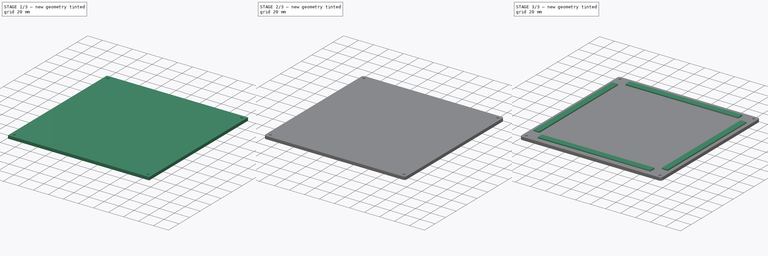
[diagram: build sequence overview — one tinted view per stage of 3, left to right]
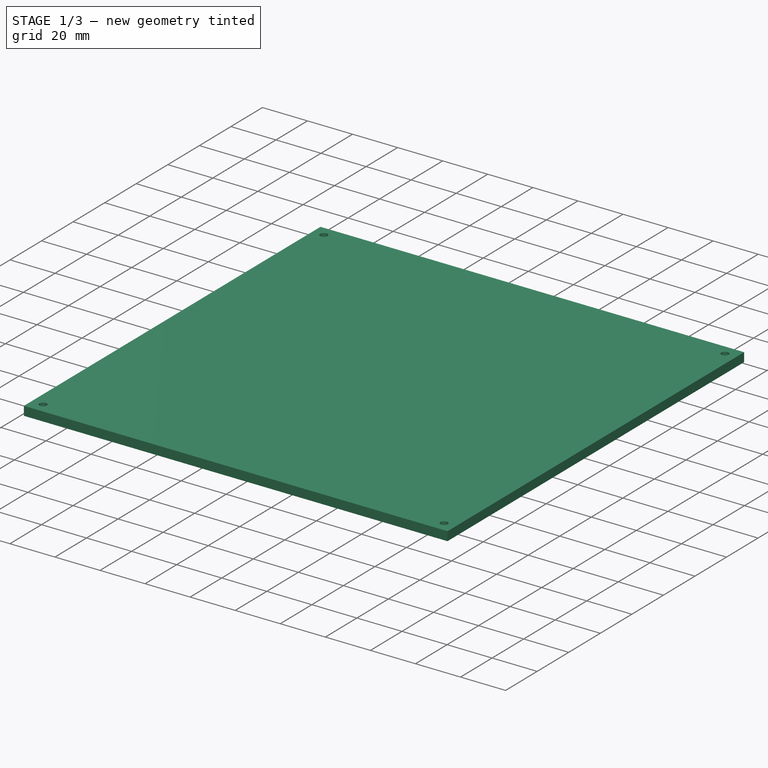
[diagram: stage 1 of 3 — iso view after this stage's code; geometry added in this stage tinted green]
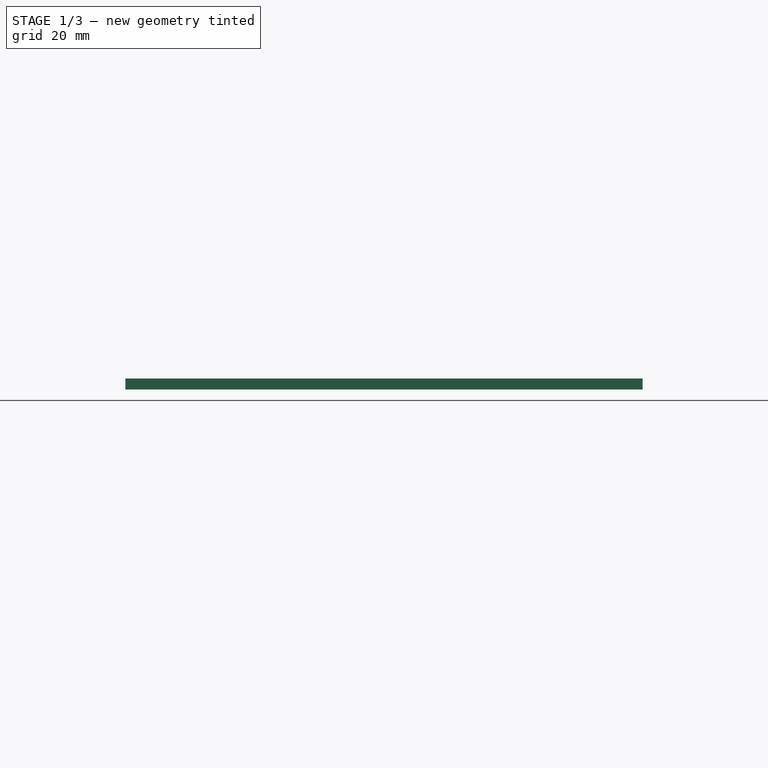
[diagram: stage 1 of 3 — front view after this stage's code; geometry added in this stage tinted green]
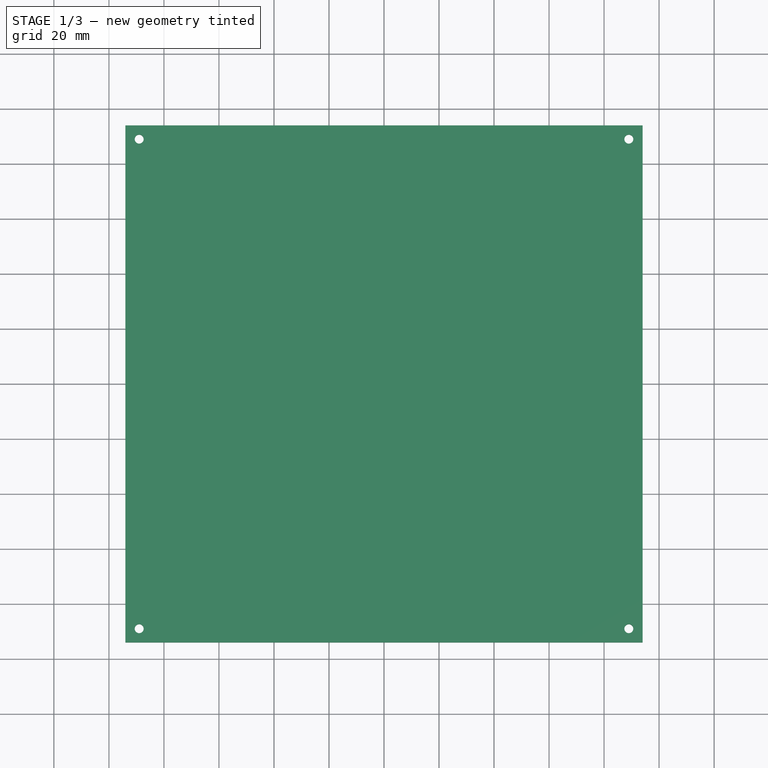
[diagram: stage 1 of 3 — top view after this stage's code; geometry added in this stage tinted green]
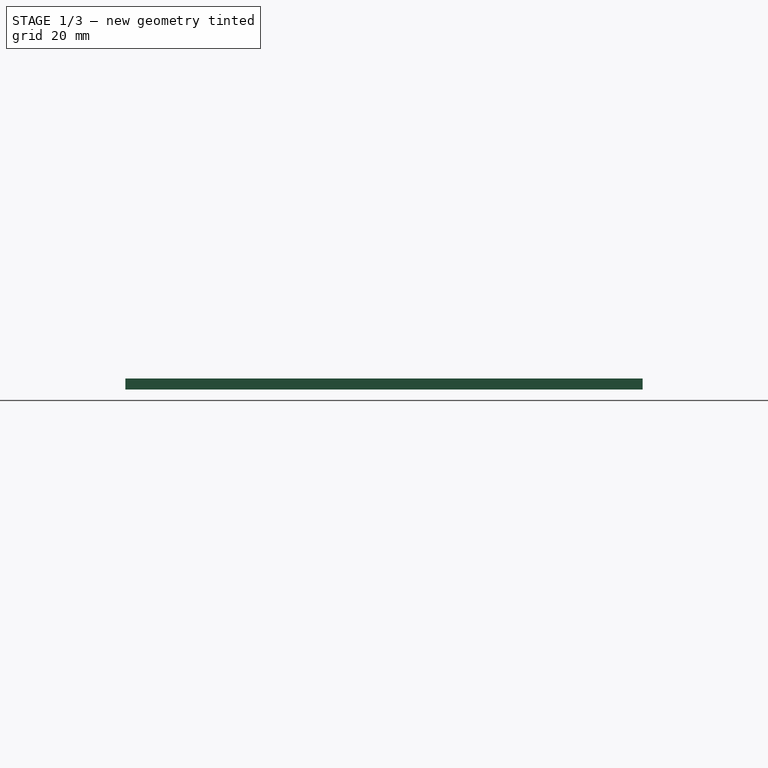
[diagram: stage 1 of 3 — right view after this stage's code; geometry added in this stage tinted green]
FCSTD DOCUMENT  (FreeCAD 1.0R38641 +468 (Git))
Label: pumps-box-lid-v0.4-no-connectors
License: All rights reserved
LicenseURL: https://en.wikipedia.org/wiki/All_rights_reserved
objects: Sketcher::SketchObject×3, PartDesign::Pad×2, PartDesign::Fillet×2, PartDesign::Pocket×1, PartDesign::Body×1
note: 22 computed .brp shape members not serialized (recipe doc carries the construction recipe); baked Part::Feature solids carry a one-line shape summary decoded from their .brp

FEATURE [Sketcher::SketchObject] Sketch
  ArcFitTolerance = 0
  AttachmentSupport = -> [XY_Plane]
  FullyConstrained = true
  MakeInternals = false
  MapMode = 5
  sketch-geometry (4):
    g0: LineSegment StartX=-94 StartY=94 StartZ=0 EndX=94 EndY=94 EndZ=0
    g1: LineSegment StartX=94 StartY=94 StartZ=0 EndX=94 EndY=-94 EndZ=0
    g2: LineSegment StartX=94 StartY=-94 StartZ=0 EndX=-94 EndY=-94 EndZ=0
    g3: LineSegment StartX=-94 StartY=-94 StartZ=0 EndX=-94 EndY=94 EndZ=0
  constraints (11):
    c: Coincident(g0,g1)
    c: Coincident(g1,g2)
    c: Coincident(g2,g3)
    c: Coincident(g3,g0)
    c: Horizontal(g0)
    c: Horizontal(g2)
    c: Vertical(g1)
    c: Vertical(g3)
    c: Symmetric(g0,g1,g-1)
    c: DistanceX(g0,g-1) = 94
    c: DistanceY(g-1,g0) = 94
FEATURE [PartDesign::Pad] Pad
  Direction = (0,0,1)
  Length = 4
  Length2 = 10
  Profile = -> Sketch
  ReferenceAxis = -> Sketch [N_Axis]
  Suppressed = false
  Type = 0
FEATURE [Sketcher::SketchObject] Sketch001
  ArcFitTolerance = 0
  AttachmentSupport = -> [Pad]
  FullyConstrained = true
  MakeInternals = false
  MapMode = 5
  Placement = pos=(0,0,4) rot=(0,0,1;0rad)
  sketch-geometry (4):
    g0: Circle CenterX=-89 CenterY=89 CenterZ=0 NormalX=0 NormalY=0 NormalZ=1 AngleXU=0 Radius=1.625
    g1: Circle CenterX=89 CenterY=89 CenterZ=0 NormalX=0 NormalY=0 NormalZ=1 AngleXU=0 Radius=1.625
    g2: Circle CenterX=89 CenterY=-89 CenterZ=0 NormalX=0 NormalY=0 NormalZ=1 AngleXU=0 Radius=1.625
    g3: Circle CenterX=-89 CenterY=-89 CenterZ=0 NormalX=0 NormalY=0 NormalZ=1 AngleXU=0 Radius=1.625
  constraints (10):
    c: Equal(g0,g1)
    c: Equal(g0,g2)
    c: Equal(g0,g3)
    c: Diameter(g0) = 3.25
    c: Symmetric(g0,g2,g-1)
    c: Symmetric(g3,g1,g-1)
    c: DistanceY(g-1,g0) = 89
    c: DistanceX(g0,g-1) = 89
    c: DistanceX(g3,g0) = 0
    c: DistanceY(g3,g2) = 0
FEATURE [PartDesign::Pocket] Pocket  label="Corner Screw Holes"
  BaseFeature = -> Pad
  Direction = (0,0,-1)
  Length = 5
  Length2 = 5
  Profile = -> Sketch001
  ReferenceAxis = -> Sketch001 [N_Axis]
  Suppressed = false
  Type = 1
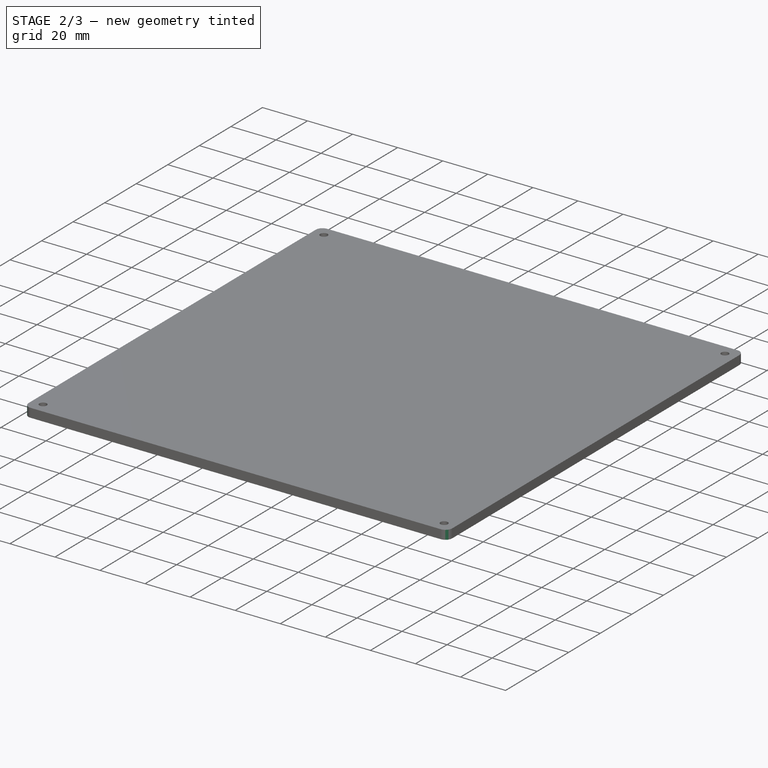
[diagram: stage 2 of 3 — iso view after this stage's code; geometry added in this stage tinted green]
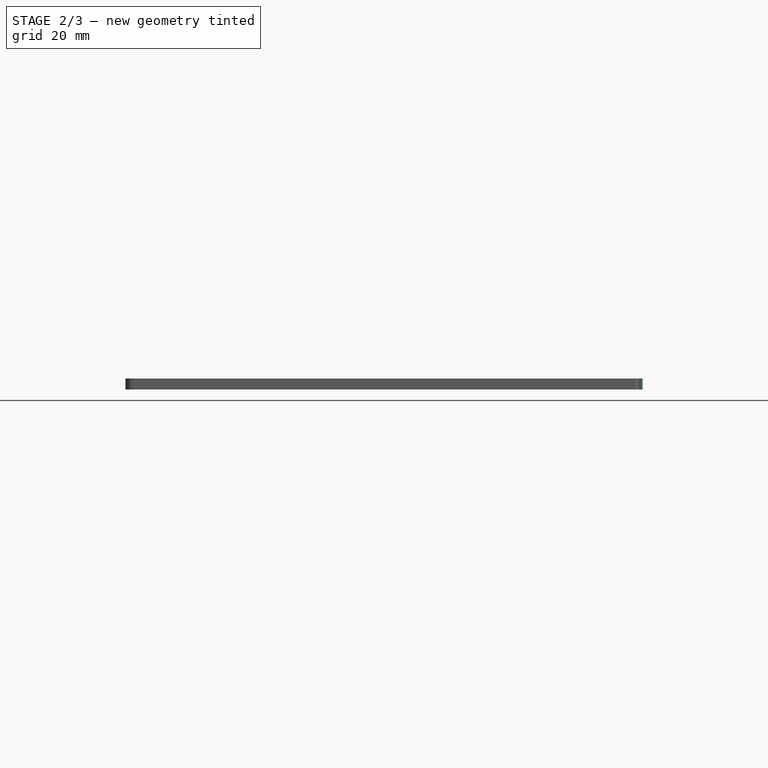
[diagram: stage 2 of 3 — front view after this stage's code; geometry added in this stage tinted green]
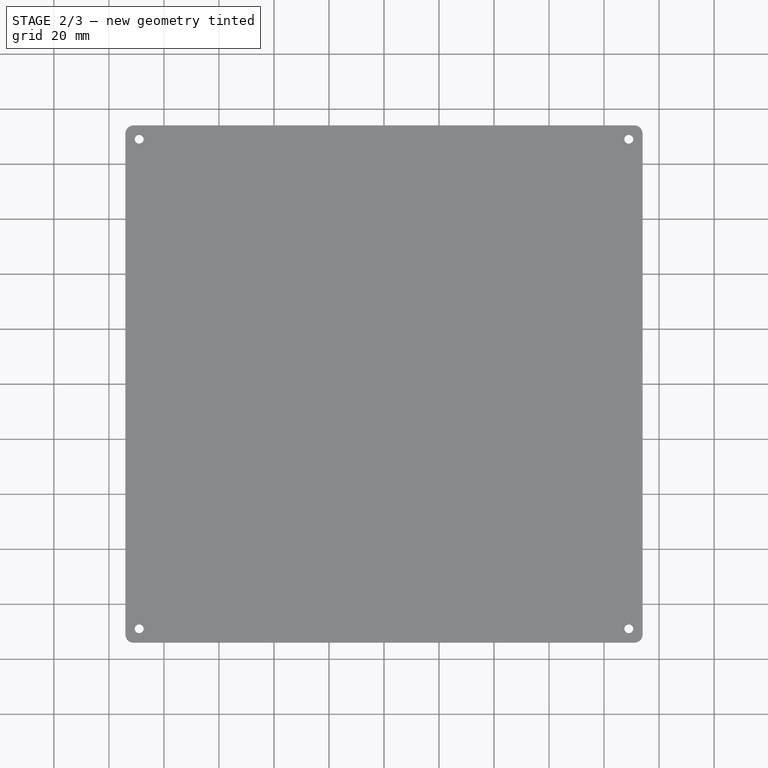
[diagram: stage 2 of 3 — top view after this stage's code; geometry added in this stage tinted green]
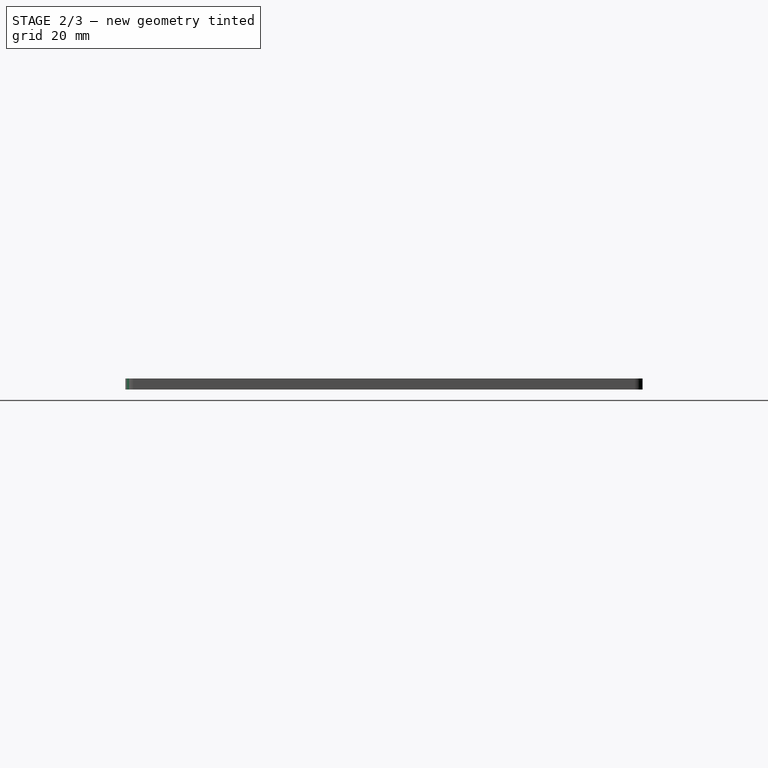
[diagram: stage 2 of 3 — right view after this stage's code; geometry added in this stage tinted green]
FEATURE [PartDesign::Fillet] Fillet
  Base = -> Pocket [Edge1,Edge2,Edge5,Edge8]
  BaseFeature = -> Pocket
  Radius = 3
  SupportTransform = false
  Suppressed = false
  UseAllEdges = false
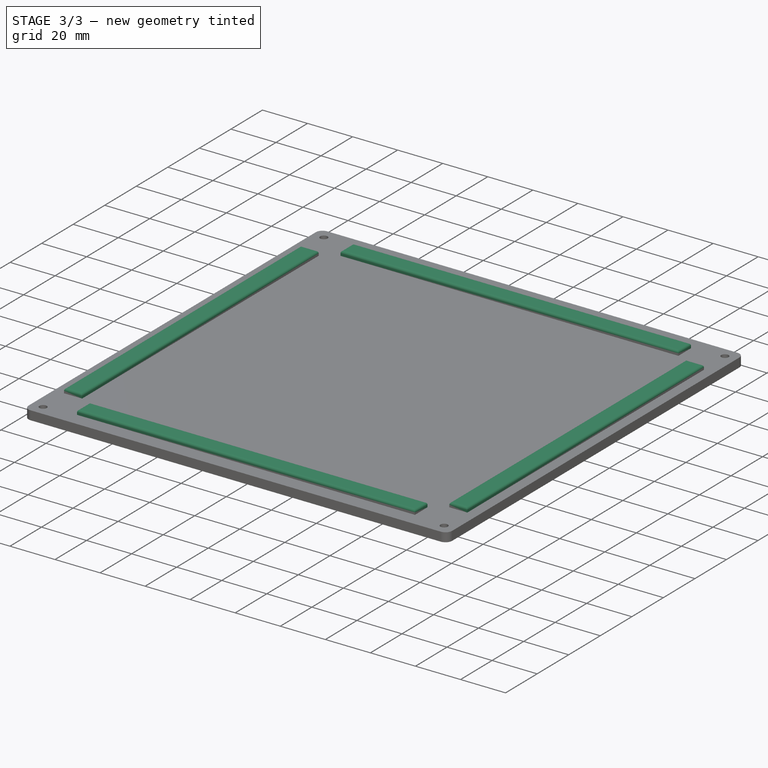
[diagram: stage 3 of 3 — iso view after this stage's code; geometry added in this stage tinted green]
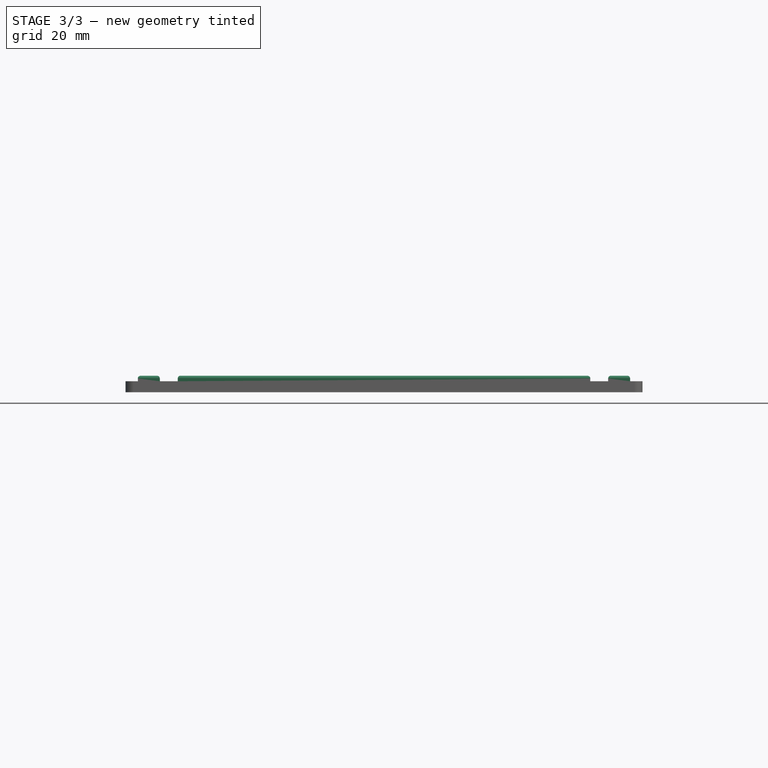
[diagram: stage 3 of 3 — front view after this stage's code; geometry added in this stage tinted green]
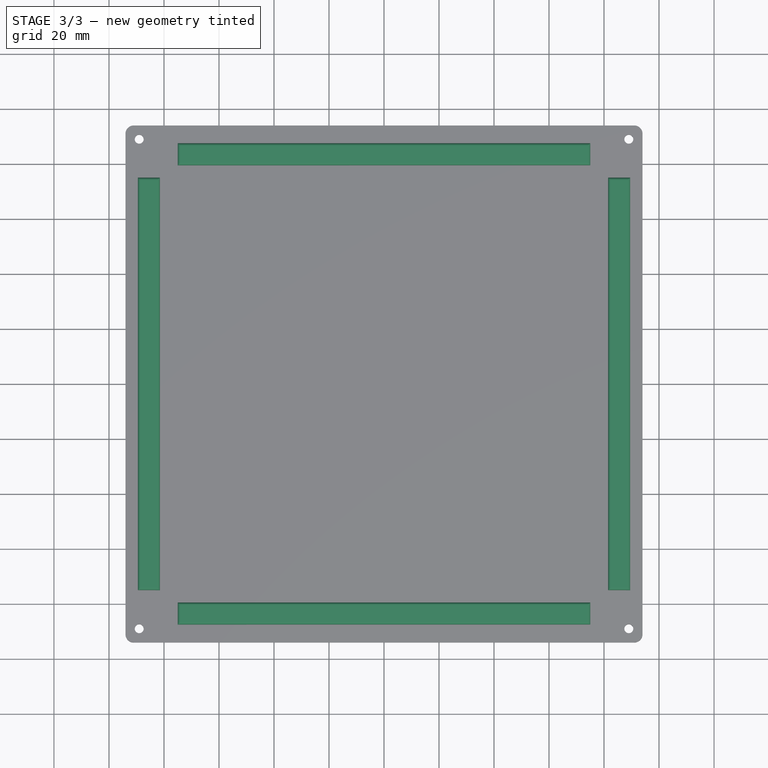
[diagram: stage 3 of 3 — top view after this stage's code; geometry added in this stage tinted green]
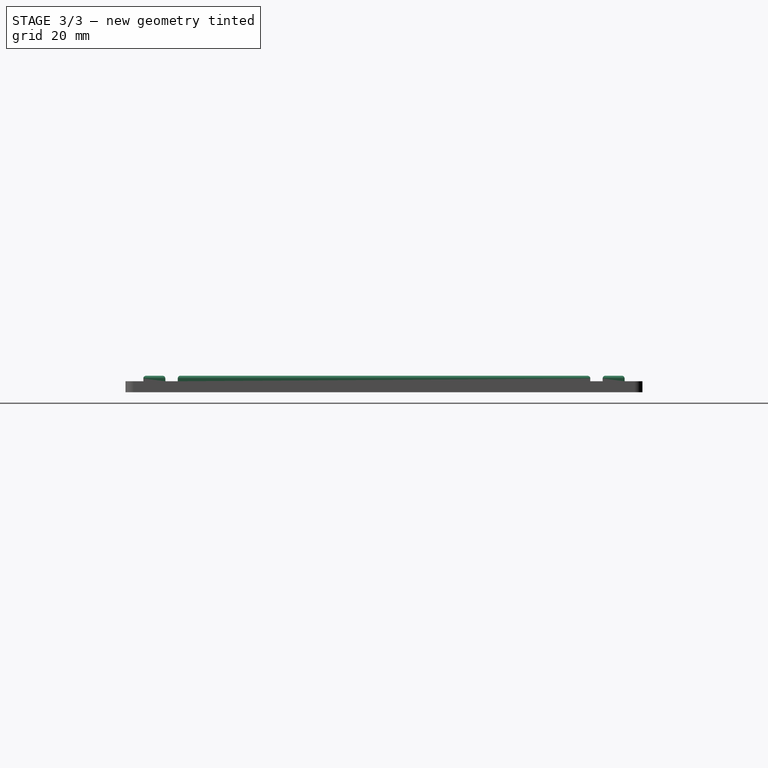
[diagram: stage 3 of 3 — right view after this stage's code; geometry added in this stage tinted green]
FEATURE [Sketcher::SketchObject] Sketch003
  ArcFitTolerance = 0
  AttachmentSupport = -> [Fillet]
  FullyConstrained = true
  MakeInternals = false
  MapMode = 5
  Placement = pos=(0,0,4) rot=(0,0,1;0rad)
  sketch-geometry (16):
    g0: LineSegment StartX=-75 StartY=-79.5 StartZ=0 EndX=75 EndY=-79.5 EndZ=0
    g1: LineSegment StartX=75 StartY=-79.5 StartZ=0 EndX=75 EndY=-87.5 EndZ=0
    g2: LineSegment StartX=75 StartY=-87.5 StartZ=0 EndX=-75 EndY=-87.5 EndZ=0
    g3: LineSegment StartX=-75 StartY=-87.5 StartZ=0 EndX=-75 EndY=-79.5 EndZ=0
    g4: LineSegment StartX=-75 StartY=87.5 StartZ=0 EndX=75 EndY=87.5 EndZ=0
    g5: LineSegment StartX=75 StartY=87.5 StartZ=0 EndX=75 EndY=79.5 EndZ=0
    g6: LineSegment StartX=75 StartY=79.5 StartZ=0 EndX=-75 EndY=79.5 EndZ=0
    g7: LineSegment StartX=-75 StartY=79.5 StartZ=0 EndX=-75 EndY=87.5 EndZ=0
    g8: LineSegment StartX=-89.5 StartY=75 StartZ=0 EndX=-81.5 EndY=75 EndZ=0
    g9: LineSegment StartX=-81.5 StartY=75 StartZ=0 EndX=-81.5 EndY=-75 EndZ=0
    g10: LineSegment StartX=-81.5 StartY=-75 StartZ=0 EndX=-89.5 EndY=-75 EndZ=0
    g11: LineSegment StartX=-89.5 StartY=-75 StartZ=0 EndX=-89.5 EndY=75 EndZ=0
    g12: LineSegment StartX=81.5 StartY=75 StartZ=0 EndX=89.5 EndY=75 EndZ=0
    g13: LineSegment StartX=89.5 StartY=75 StartZ=0 EndX=89.5 EndY=-75 EndZ=0
    g14: LineSegment StartX=89.5 StartY=-75 StartZ=0 EndX=81.5 EndY=-75 EndZ=0
    g15: LineSegment StartX=81.5 StartY=-75 StartZ=0 EndX=81.5 EndY=75 EndZ=0
  constraints (44):
    c: Coincident(g0,g1)
    c: Coincident(g1,g2)
    c: Coincident(g2,g3)
    c: Coincident(g3,g0)
    c: Horizontal(g2)
    c: Vertical(g1)
    c: Vertical(g3)
    c: Distance(g0) = 150
    c: Distance(g3) = 8
    c: DistanceY(g0,g-1) = 79.5
    c: Symmetric(g0,g0,g-2)
    c: Coincident(g4,g5)
    c: Coincident(g5,g6)
    c: Coincident(g6,g7)
    c: Coincident(g7,g4)
    c: Horizontal(g4)
    c: Horizontal(g6)
    c: Vertical(g5)
    c: Vertical(g7)
    c: Equal(g0,g6)
    c: Equal(g1,g5)
    c: Symmetric(g0,g6,g-1)
    c: Coincident(g8,g9)
    c: Coincident(g9,g10)
    c: Coincident(g10,g11)
    c: Coincident(g11,g8)
    c: Horizontal(g8)
    c: Horizontal(g10)
    c: Vertical(g9)
    c: Equal(g9,g0)
    c: Equal(g10,g3)
    c: DistanceX(g8,g-1) = 81.5
    c: Symmetric(g8,g10,g-1)
    c: Coincident(g12,g13)
    c: Coincident(g13,g14)
    c: Coincident(g14,g15)
    c: Coincident(g15,g12)
    c: Horizontal(g12)
    c: Horizontal(g14)
    c: Vertical(g13)
    c: Vertical(g15)
    c: Equal(g12,g8)
    c: Equal(g15,g11)
    c: Symmetric(g12,g8,g-2)
FEATURE [PartDesign::Pad] Pad001
  BaseFeature = -> Fillet
  Direction = (0,0,1)
  Length = 2
  Length2 = 10
  Profile = -> Sketch003
  ReferenceAxis = -> Sketch003 [N_Axis]
  Suppressed = false
  Type = 0
FEATURE [PartDesign::Fillet] Fillet001
  Base = -> Pad001 [Face31,Face32,Face33,Face34]
  BaseFeature = -> Pad001
  Radius = 1
  SupportTransform = false
  Suppressed = false
  UseAllEdges = false
FEATURE [PartDesign::Body] Body
  AllowCompound = false
  Group = -> [Sketch,Pad,Sketch001,Pocket,Fillet,Sketch003,Pad001,Fillet001]
  Origin = -> Origin
  Tip = -> Fillet001
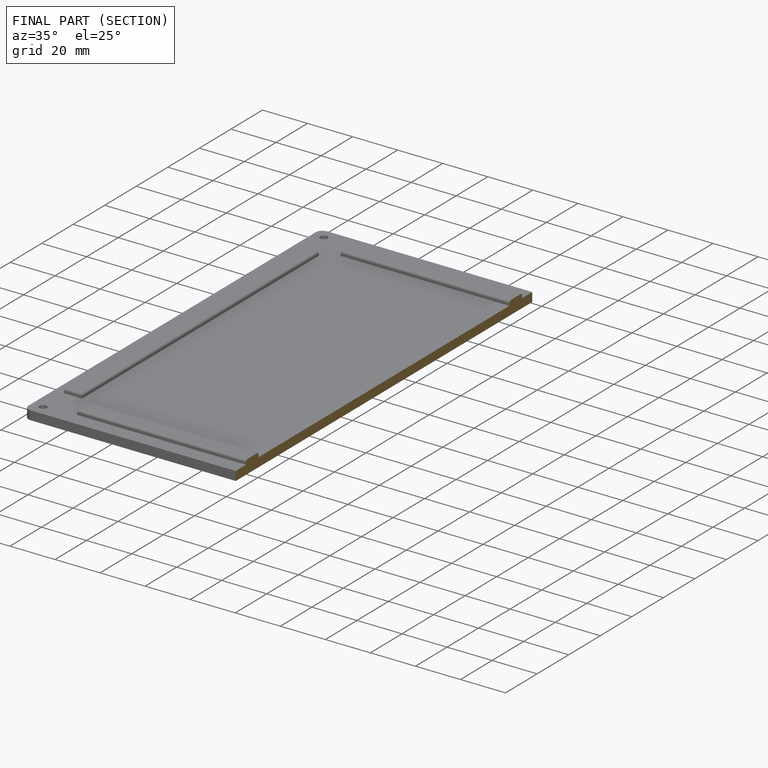
[diagram: finished part — half-section view (interior)]
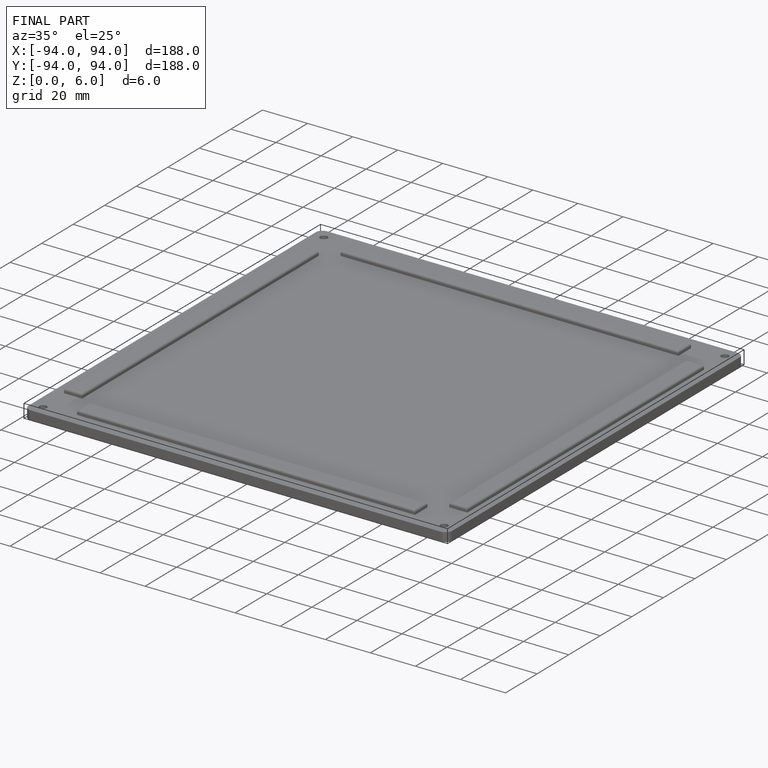
[diagram: finished part — iso view with bounding-box wireframe]
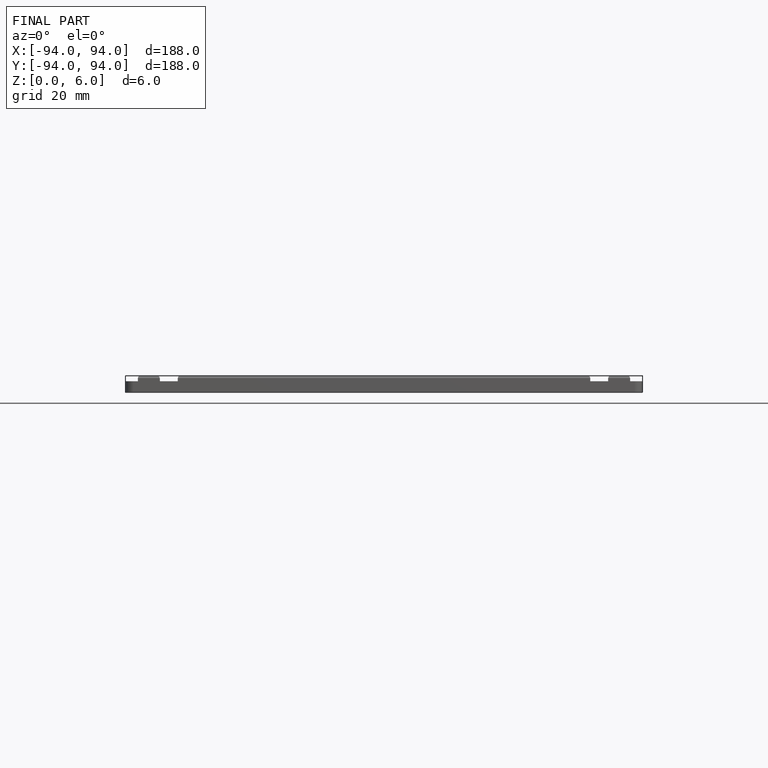
[diagram: finished part — front view with bounding-box wireframe]
